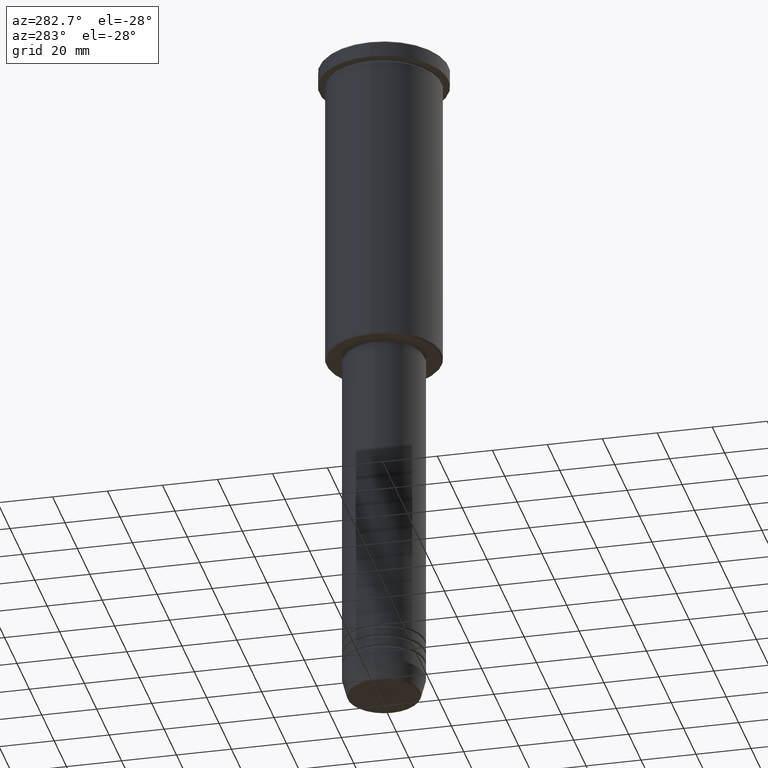
[diagram: clean part render]
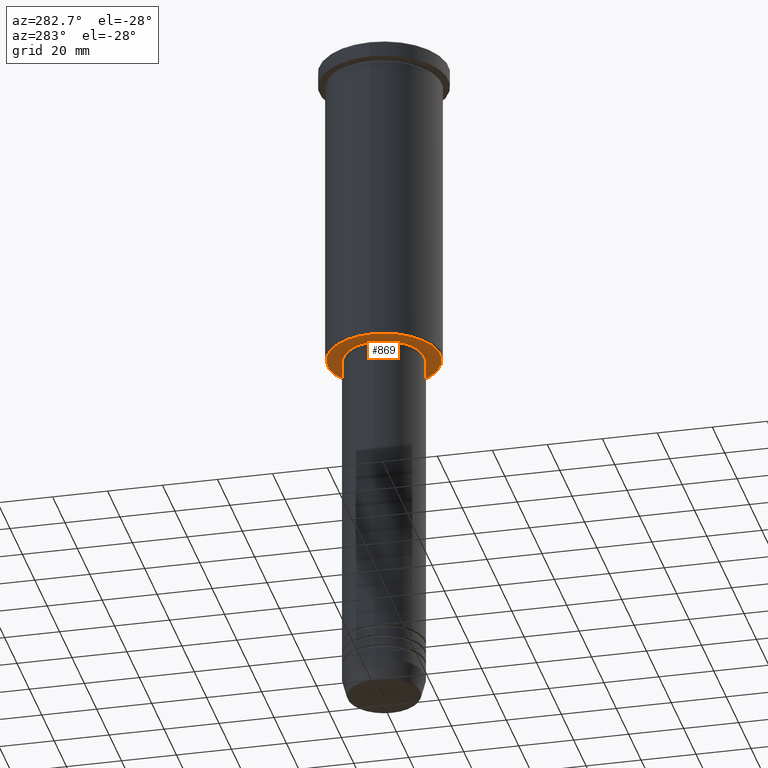
[diagram: same view with one face highlighted and labeled with its STEP entity id]
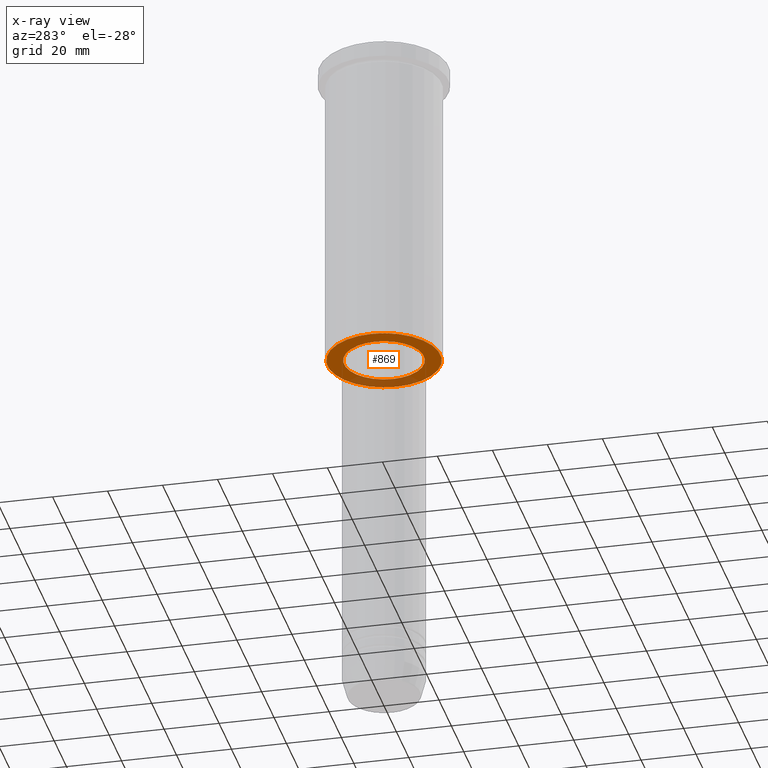
[diagram: x-ray of the same camera — body ghosted, the highlighted face saturated]
A machine part, auxiliary view. The second image highlights one B-rep face of the part: STEP entity #869.
The next image is the same camera in x-ray: the body ghosted, the highlighted face saturated — about 21% of this face is hidden behind the body in this view.
In plain terms, the highlighted planar face has unit normal (0, 0, -1).
Its self-contained STEP definition (entity closure, byte-faithful):
#5 = VERTEX_POINT ( 'NONE', #801 ) ;
#11 = CARTESIAN_POINT ( 'NONE',  ( -20.49999999999996447, 2.541142108230755902E-15, -115.9999999999999858 ) ) ;
#27 = EDGE_CURVE ( 'NONE', #5, #851, #133, .T. ) ;
#31 = DIRECTION ( 'NONE',  ( 0.000000000000000000, 0.000000000000000000, -1.000000000000000000 ) ) ;
#73 = AXIS2_PLACEMENT_3D ( 'NONE', #1153, #1082, #176 ) ;
#77 = DIRECTION ( 'NONE',  ( 0.000000000000000000, 0.000000000000000000, -1.000000000000000000 ) ) ;
#101 = EDGE_CURVE ( 'NONE', #1120, #752, #952, .T. ) ;
#133 = CIRCLE ( 'NONE', #73, 14.49999999999999822 ) ;
#155 = CARTESIAN_POINT ( 'NONE',  ( 0.000000000000000000, 0.000000000000000000, -115.9999999999999858 ) ) ;
#176 = DIRECTION ( 'NONE',  ( 1.000000000000000000, 0.000000000000000000, 0.000000000000000000 ) ) ;
#179 = DIRECTION ( 'NONE',  ( -1.000000000000000000, 0.000000000000000000, 0.000000000000000000 ) ) ;
#192 = CIRCLE ( 'NONE', #687, 20.49999999999996447 ) ;
#201 = DIRECTION ( 'NONE',  ( -1.000000000000000000, 0.000000000000000000, -0.000000000000000000 ) ) ;
#310 = CARTESIAN_POINT ( 'NONE',  ( 20.49999999999996447, 0.000000000000000000, -115.9999999999999858 ) ) ;
#318 = FACE_BOUND ( 'NONE', #827, .T. ) ;
#347 = CARTESIAN_POINT ( 'NONE',  ( 0.000000000000000000, 0.000000000000000000, -115.9999999999999858 ) ) ;
#389 = CARTESIAN_POINT ( 'NONE',  ( 0.000000000000000000, 21.00000000000000000, -115.9999999999999858 ) ) ;
#461 = ORIENTED_EDGE ( 'NONE', *, *, #101, .T. ) ;
#489 = FACE_OUTER_BOUND ( 'NONE', #1078, .T. ) ;
#498 = EDGE_CURVE ( 'NONE', #851, #5, #975, .T. ) ;
#565 = ORIENTED_EDGE ( 'NONE', *, *, #498, .T. ) ;
#616 = CARTESIAN_POINT ( 'NONE',  ( 0.000000000000000000, 0.000000000000000000, -115.9999999999999858 ) ) ;
#684 = PLANE ( 'NONE',  #685 ) ;
#685 = AXIS2_PLACEMENT_3D ( 'NONE', #389, #31, #201 ) ;
#687 = AXIS2_PLACEMENT_3D ( 'NONE', #155, #979, #179 ) ;
#712 = AXIS2_PLACEMENT_3D ( 'NONE', #616, #77, #1077 ) ;
#752 = VERTEX_POINT ( 'NONE', #310 ) ;
#792 = ORIENTED_EDGE ( 'NONE', *, *, #27, .T. ) ;
#801 = CARTESIAN_POINT ( 'NONE',  ( 14.49999999999999822, 0.000000000000000000, -115.9999999999999858 ) ) ;
#814 = DIRECTION ( 'NONE',  ( 1.000000000000000000, 0.000000000000000000, 0.000000000000000000 ) ) ;
#827 = EDGE_LOOP ( 'NONE', ( #792, #565 ) ) ;
#851 = VERTEX_POINT ( 'NONE', #954 ) ;
#869 = ADVANCED_FACE ( 'NONE', ( #489, #318 ), #684, .T. ) ;
#952 = CIRCLE ( 'NONE', #712, 20.49999999999996447 ) ;
#954 = CARTESIAN_POINT ( 'NONE',  ( -14.49999999999999822, 1.775737858763662015E-15, -115.9999999999999858 ) ) ;
#964 = ORIENTED_EDGE ( 'NONE', *, *, #1027, .T. ) ;
#966 = DIRECTION ( 'NONE',  ( -0.000000000000000000, -0.000000000000000000, 1.000000000000000000 ) ) ;
#975 = CIRCLE ( 'NONE', #1033, 14.49999999999999822 ) ;
#979 = DIRECTION ( 'NONE',  ( 0.000000000000000000, 0.000000000000000000, -1.000000000000000000 ) ) ;
#1027 = EDGE_CURVE ( 'NONE', #752, #1120, #192, .T. ) ;
#1033 = AXIS2_PLACEMENT_3D ( 'NONE', #347, #966, #814 ) ;
#1077 = DIRECTION ( 'NONE',  ( -1.000000000000000000, 0.000000000000000000, 0.000000000000000000 ) ) ;
#1078 = EDGE_LOOP ( 'NONE', ( #964, #461 ) ) ;
#1082 = DIRECTION ( 'NONE',  ( -0.000000000000000000, -0.000000000000000000, 1.000000000000000000 ) ) ;
#1120 = VERTEX_POINT ( 'NONE', #11 ) ;
#1153 = CARTESIAN_POINT ( 'NONE',  ( 0.000000000000000000, 0.000000000000000000, -115.9999999999999858 ) ) ;